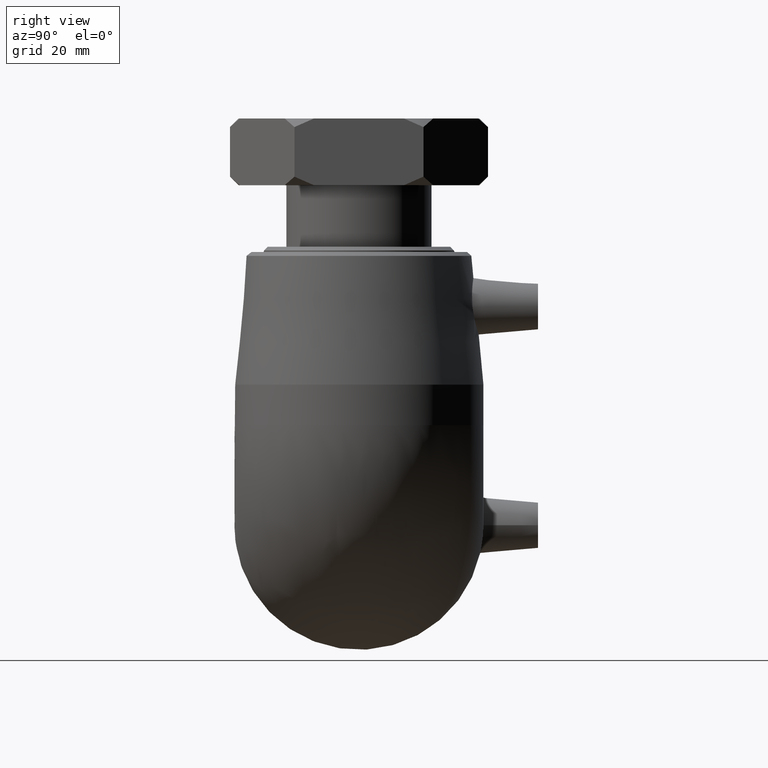
[diagram: clean part render]
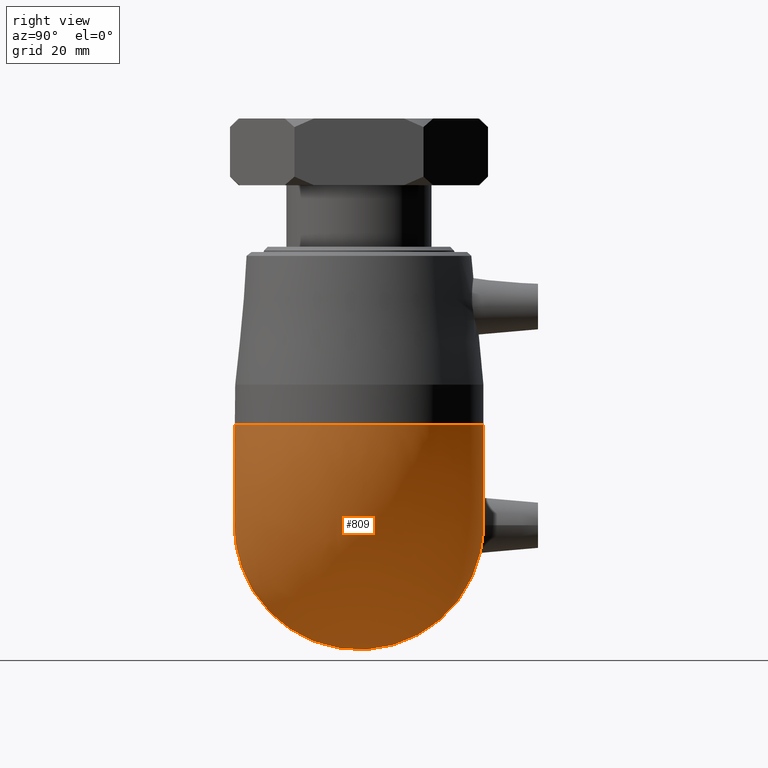
[diagram: same view with one face highlighted and labeled with its STEP entity id]
A machine part, right view. The second image highlights one B-rep face of the part: STEP entity #809.
In plain terms, the highlighted face is a freeform B-spline surface patch.
Its self-contained STEP definition (entity closure, byte-faithful):
#16=(
BOUNDED_SURFACE()
B_SPLINE_SURFACE(2,2,((#1496,#1497,#1498),(#1499,#1500,#1501),(#1502,#1503,
#1504),(#1505,#1506,#1507),(#1508,#1509,#1510),(#1511,#1512,#1513),(#1514,
#1515,#1516),(#1517,#1518,#1519),(#1520,#1521,#1522)),.UNSPECIFIED.,.F.,
 .F.,.F.)
B_SPLINE_SURFACE_WITH_KNOTS((3,2,2,2,3),(3,3),(-2.50626626762527,-1.25313313381264,
0.,1.25313313381264,2.50626626762527),(-2.04758954793629E-18,1.5707963267949),
 .UNSPECIFIED.)
GEOMETRIC_REPRESENTATION_ITEM()
RATIONAL_B_SPLINE_SURFACE(((1.,0.707106781186547,1.),(0.810045530750344,
0.572788687863424,0.810045530750344),(1.,0.707106781186547,1.),(0.810045530750344,
0.572788687863424,0.810045530750344),(1.,0.707106781186547,1.),(0.810045530750344,
0.572788687863424,0.810045530750344),(1.,0.707106781186547,1.),(0.810045530750344,
0.572788687863424,0.810045530750344),(1.,0.707106781186547,1.)))
REPRESENTATION_ITEM('')
SURFACE()
);
#202=FACE_OUTER_BOUND('',#290,.T.);
#290=EDGE_LOOP('',(#708,#709));
#362=CIRCLE('',#913,41.);
#363=CIRCLE('',#914,41.);
#440=VERTEX_POINT('',#1523);
#441=VERTEX_POINT('',#1524);
#536=EDGE_CURVE('',#440,#441,#362,.T.);
#537=EDGE_CURVE('',#441,#440,#363,.T.);
#708=ORIENTED_EDGE('',*,*,#536,.T.);
#709=ORIENTED_EDGE('',*,*,#537,.T.);
#809=ADVANCED_FACE('',(#202),#16,.F.);
#913=AXIS2_PLACEMENT_3D('',#1525,#1128,#1129);
#914=AXIS2_PLACEMENT_3D('',#1526,#1130,#1131);
#1128=DIRECTION('center_axis',(6.12323399573677E-17,-1.5419764230905E-18,
-1.));
#1129=DIRECTION('ref_axis',(-1.,0.,-6.12323399573676E-17));
#1130=DIRECTION('center_axis',(1.,-1.5419764230905E-18,0.));
#1131=DIRECTION('ref_axis',(0.,0.,-1.));
#1496=CARTESIAN_POINT('Ctrl Pts',(-33.,24.3310501211929,33.));
#1497=CARTESIAN_POINT('Ctrl Pts',(-33.,24.3310501211929,33.));
#1498=CARTESIAN_POINT('Ctrl Pts',(-33.,24.3310501211929,33.));
#1499=CARTESIAN_POINT('Ctrl Pts',(-33.,48.2187325864428,15.3875030502686));
#1500=CARTESIAN_POINT('Ctrl Pts',(-15.3875030502686,48.2187325864428,15.3875030502686));
#1501=CARTESIAN_POINT('Ctrl Pts',(-15.3875030502686,48.2187325864428,33.));
#1502=CARTESIAN_POINT('Ctrl Pts',(-33.,38.9486841883009,-12.8062484748657));
#1503=CARTESIAN_POINT('Ctrl Pts',(12.8062484748657,38.9486841883009,-12.8062484748657));
#1504=CARTESIAN_POINT('Ctrl Pts',(12.8062484748657,38.9486841883009,33.));
#1505=CARTESIAN_POINT('Ctrl Pts',(-33.,29.678635790159,-41.));
#1506=CARTESIAN_POINT('Ctrl Pts',(41.,29.678635790159,-41.));
#1507=CARTESIAN_POINT('Ctrl Pts',(41.,29.678635790159,33.));
#1508=CARTESIAN_POINT('Ctrl Pts',(-33.,0.,-41.));
#1509=CARTESIAN_POINT('Ctrl Pts',(41.,-1.14106255308697E-16,-41.));
#1510=CARTESIAN_POINT('Ctrl Pts',(41.,-1.14106255308697E-16,33.));
#1511=CARTESIAN_POINT('Ctrl Pts',(-33.,-29.678635790159,-41.));
#1512=CARTESIAN_POINT('Ctrl Pts',(41.,-29.678635790159,-41.));
#1513=CARTESIAN_POINT('Ctrl Pts',(41.,-29.678635790159,33.));
#1514=CARTESIAN_POINT('Ctrl Pts',(-33.,-38.9486841883009,-12.8062484748657));
#1515=CARTESIAN_POINT('Ctrl Pts',(12.8062484748657,-38.9486841883009,-12.8062484748657));
#1516=CARTESIAN_POINT('Ctrl Pts',(12.8062484748657,-38.9486841883009,33.));
#1517=CARTESIAN_POINT('Ctrl Pts',(-33.,-48.2187325864428,15.3875030502686));
#1518=CARTESIAN_POINT('Ctrl Pts',(-15.3875030502686,-48.2187325864428,15.3875030502686));
#1519=CARTESIAN_POINT('Ctrl Pts',(-15.3875030502686,-48.2187325864428,33.));
#1520=CARTESIAN_POINT('Ctrl Pts',(-33.,-24.3310501211929,33.));
#1521=CARTESIAN_POINT('Ctrl Pts',(-33.,-24.3310501211929,33.));
#1522=CARTESIAN_POINT('Ctrl Pts',(-33.,-24.3310501211929,33.));
#1523=CARTESIAN_POINT('',(-33.,24.3310501211929,33.));
#1524=CARTESIAN_POINT('',(-33.,-24.3310501211929,33.));
#1525=CARTESIAN_POINT('Origin',(-2.02066721859313E-15,-8.78926561161582E-17,
33.));
#1526=CARTESIAN_POINT('Origin',(-33.,-8.78926561161582E-17,0.));